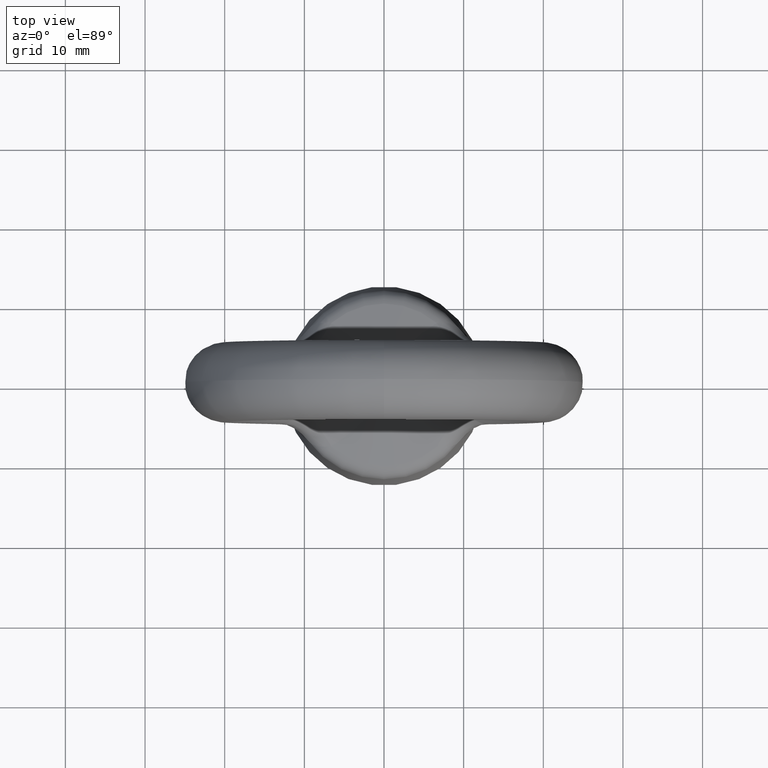
[diagram: clean part render]
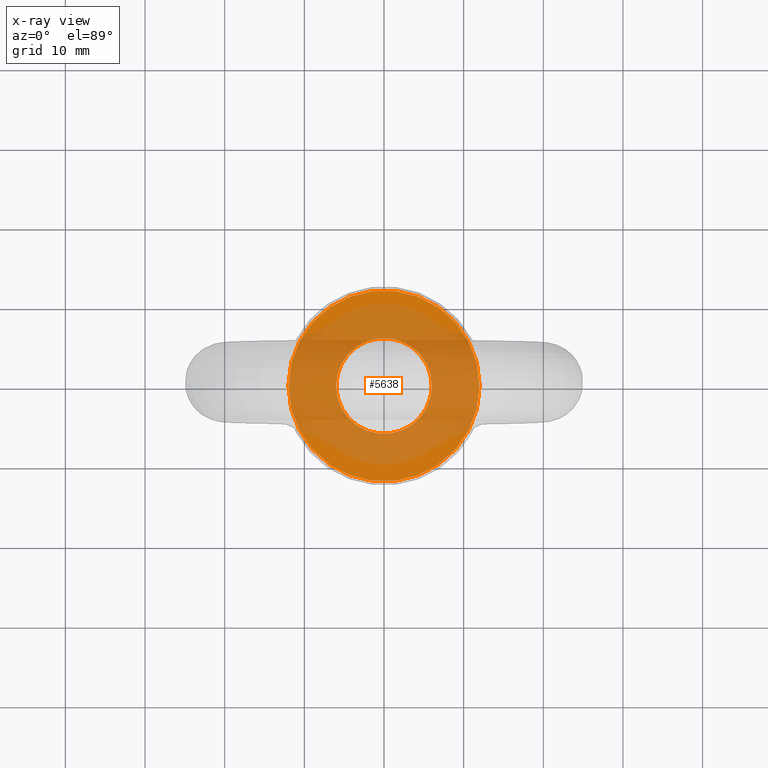
[diagram: x-ray — body ghosted, one internal face saturated and labeled with its STEP entity id]
A machine part, top view, then the same camera in x-ray: the body is ghosted and one INTERNAL B-rep face — a face not visible from any outside direction — is saturated and labeled: STEP entity #5638.
In plain terms, the highlighted planar face has unit normal (0, 0, 1).
Its self-contained STEP definition (entity closure, byte-faithful):
#2851 = CARTESIAN_POINT ( 'NONE',  ( -6.000000000000000000, 0.0000000000000000000, -26.00000000000000000 ) ) ;
#2852 = CARTESIAN_POINT ( 'NONE',  ( 6.000000000000000000, 7.347638122934263500E-016, -26.00000000000000000 ) ) ;
#2853 = DIRECTION ( 'NONE',  ( 1.000000000000000000, 0.0000000000000000000, 0.0000000000000000000 ) ) ;
#2854 = DIRECTION ( 'NONE',  ( 0.0000000000000000000, 0.0000000000000000000, -1.000000000000000000 ) ) ;
#2855 = AXIS2_PLACEMENT_3D ( 'NONE', #2861, #2854, #2853 ) ;
#2856 = CIRCLE ( 'NONE', #2855, 6.000000000000000000 ) ;
#2861 = CARTESIAN_POINT ( 'NONE',  ( 0.0000000000000000000, 0.0000000000000000000, -26.00000000000000000 ) ) ;
#2862 = DIRECTION ( 'NONE',  ( 1.000000000000000000, 0.0000000000000000000, 0.0000000000000000000 ) ) ;
#2863 = DIRECTION ( 'NONE',  ( 0.0000000000000000000, 0.0000000000000000000, -1.000000000000000000 ) ) ;
#2864 = CARTESIAN_POINT ( 'NONE',  ( 0.0000000000000000000, 0.0000000000000000000, -26.00000000000000000 ) ) ;
#2865 = AXIS2_PLACEMENT_3D ( 'NONE', #2864, #2863, #2862 ) ;
#2866 = CIRCLE ( 'NONE', #2865, 6.000000000000000000 ) ;
#2875 = DIRECTION ( 'NONE',  ( 1.000000000000000000, 0.0000000000000000000, 0.0000000000000000000 ) ) ;
#2876 = DIRECTION ( 'NONE',  ( 0.0000000000000000000, 0.0000000000000000000, 1.000000000000000000 ) ) ;
#2877 = CARTESIAN_POINT ( 'NONE',  ( 0.0000000000000000000, 0.0000000000000000000, -26.00000000000000000 ) ) ;
#2878 = AXIS2_PLACEMENT_3D ( 'NONE', #2877, #2876, #2875 ) ;
#2879 = PLANE ( 'NONE',  #2878 ) ;
#2880 = FACE_OUTER_BOUND ( 'NONE', #5645, .T. ) ;
#2881 = FACE_BOUND ( 'NONE', #5639, .T. ) ;
#2887 = DIRECTION ( 'NONE',  ( 1.000000000000000000, 0.0000000000000000000, 0.0000000000000000000 ) ) ;
#2888 = DIRECTION ( 'NONE',  ( 0.0000000000000000000, 0.0000000000000000000, -1.000000000000000000 ) ) ;
#2889 = CARTESIAN_POINT ( 'NONE',  ( 0.0000000000000000000, 0.0000000000000000000, -26.00000000000000000 ) ) ;
#2890 = AXIS2_PLACEMENT_3D ( 'NONE', #2889, #2888, #2887 ) ;
#2891 = CIRCLE ( 'NONE', #2890, 12.00000000000000000 ) ;
#2973 = CARTESIAN_POINT ( 'NONE',  ( 12.00000000000000000, 1.469527624586852700E-015, -26.00000000000000000 ) ) ;
#2974 = CARTESIAN_POINT ( 'NONE',  ( -12.00000000000000000, 0.0000000000000000000, -26.00000000000000000 ) ) ;
#2975 = DIRECTION ( 'NONE',  ( 1.000000000000000000, 0.0000000000000000000, 0.0000000000000000000 ) ) ;
#2976 = DIRECTION ( 'NONE',  ( 0.0000000000000000000, 0.0000000000000000000, -1.000000000000000000 ) ) ;
#2977 = AXIS2_PLACEMENT_3D ( 'NONE', #2983, #2976, #2975 ) ;
#2978 = CIRCLE ( 'NONE', #2977, 12.00000000000000000 ) ;
#2983 = CARTESIAN_POINT ( 'NONE',  ( 0.0000000000000000000, 0.0000000000000000000, -26.00000000000000000 ) ) ;
#5615 = EDGE_CURVE ( 'NONE', #5616, #5617, #2856, .T. ) ;
#5616 = VERTEX_POINT ( 'NONE', #2852 ) ;
#5617 = VERTEX_POINT ( 'NONE', #2851 ) ;
#5634 = EDGE_CURVE ( 'NONE', #5704, #5703, #2891, .T. ) ;
#5638 = ADVANCED_FACE ( 'NONE', ( #2881, #2880 ), #2879, .T. ) ;
#5639 = EDGE_LOOP ( 'NONE', ( #5643, #5644 ) ) ;
#5643 = ORIENTED_EDGE ( 'NONE', *, *, #5646, .T. ) ;
#5644 = ORIENTED_EDGE ( 'NONE', *, *, #5615, .T. ) ;
#5645 = EDGE_LOOP ( 'NONE', ( #6089, #6085 ) ) ;
#5646 = EDGE_CURVE ( 'NONE', #5617, #5616, #2866, .T. ) ;
#5702 = EDGE_CURVE ( 'NONE', #5703, #5704, #2978, .T. ) ;
#5703 = VERTEX_POINT ( 'NONE', #2974 ) ;
#5704 = VERTEX_POINT ( 'NONE', #2973 ) ;
#6085 = ORIENTED_EDGE ( 'NONE', *, *, #5634, .F. ) ;
#6089 = ORIENTED_EDGE ( 'NONE', *, *, #5702, .F. ) ;